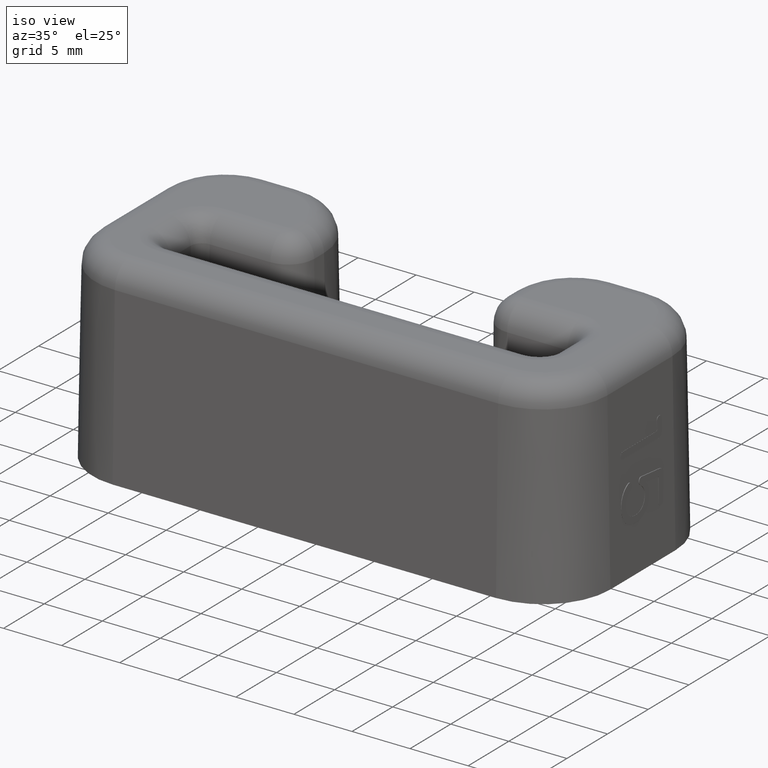
[diagram: clean part render]
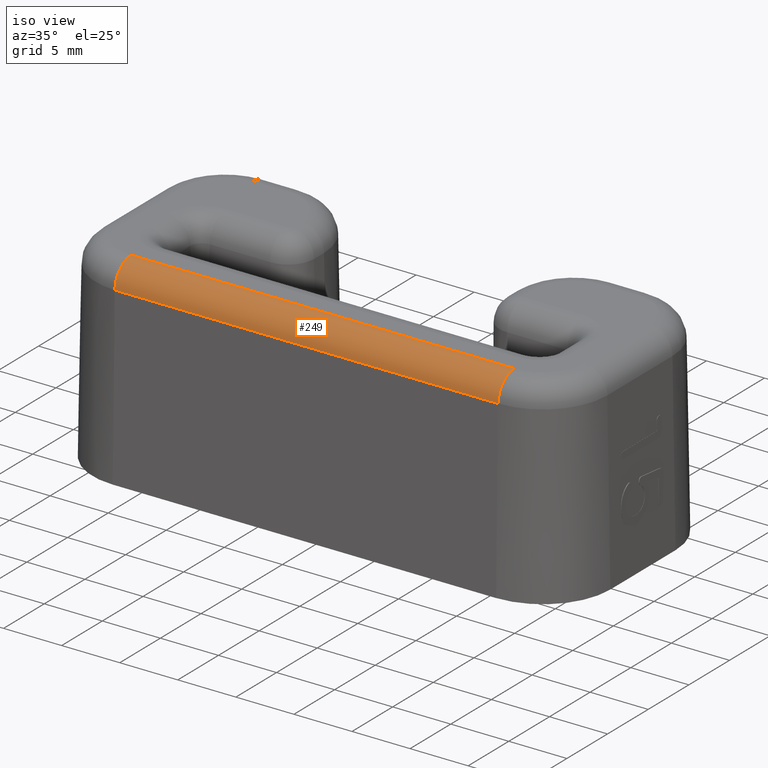
[diagram: same view with one face highlighted and labeled with its STEP entity id]
A machine part, iso view. The second image highlights one B-rep face of the part: STEP entity #249.
In plain terms, the highlighted cylindrical surface (edge-blend (fillet) strip) has radius 2 mm, axis along (1, 0, -0).
Its self-contained STEP definition (entity closure, byte-faithful):
#249=ADVANCED_FACE('',(#545),#546,.T.);
#545=FACE_OUTER_BOUND('',#967,.T.);
#546=CYLINDRICAL_SURFACE('',#968,2.0);
#967=EDGE_LOOP('',(#2144,#2145,#2146,#2147));
#968=AXIS2_PLACEMENT_3D('',#2148,#2149,#2150);
#2144=ORIENTED_EDGE('',*,*,#3116,.T.);
#2145=ORIENTED_EDGE('',*,*,#3117,.F.);
#2146=ORIENTED_EDGE('',*,*,#3111,.F.);
#2147=ORIENTED_EDGE('',*,*,#3105,.F.);
#2148=CARTESIAN_POINT('',(-16.5,-0.0346054737686194,15.0));
#2149=DIRECTION('',(1.0,0.0,-0.0));
#2150=DIRECTION('',(0.0,0.0,1.0));
#3105=EDGE_CURVE('',#3731,#3723,#3733,.F.);
#3111=EDGE_CURVE('',#3723,#3742,#3743,.T.);
#3116=EDGE_CURVE('',#3731,#3750,#3751,.T.);
#3117=EDGE_CURVE('',#3742,#3750,#3752,.F.);
#3723=VERTEX_POINT('',#5235);
#3731=VERTEX_POINT('',#5245);
#3733=LINE('',#5248,#5249);
#3742=VERTEX_POINT('',#5261);
#3743=CIRCLE('',#5262,2.0);
#3750=VERTEX_POINT('',#5269);
#3751=CIRCLE('',#5270,2.0);
#3752=LINE('',#5271,#5272);
#5235=CARTESIAN_POINT('',(-16.5,-2.03430086408135,15.0349048128745));
#5245=CARTESIAN_POINT('',(16.5,-2.03430086408141,15.0349048128745));
#5248=CARTESIAN_POINT('',(-16.5,-2.03430086408141,15.0349048128745));
#5249=VECTOR('',#5890,1000.0);
#5261=CARTESIAN_POINT('',(-16.5,-0.0346054737685605,17.0));
#5262=AXIS2_PLACEMENT_3D('',#5900,#5901,#5902);
#5269=CARTESIAN_POINT('',(16.5,-0.0346054737686194,17.0));
#5270=AXIS2_PLACEMENT_3D('',#5915,#5916,#5917);
#5271=CARTESIAN_POINT('',(-16.5,-0.0346054737686194,17.0));
#5272=VECTOR('',#5918,1000.0);
#5890=DIRECTION('',(1.0,0.0,0.0));
#5900=CARTESIAN_POINT('',(-16.5,-0.0346054737686199,15.0));
#5901=DIRECTION('',(-1.0,0.0,0.0));
#5902=DIRECTION('',(0.0,0.0,1.0));
#5915=CARTESIAN_POINT('',(16.5,-0.0346054737686489,15.0));
#5916=DIRECTION('',(-1.0,0.0,0.0));
#5917=DIRECTION('',(0.0,0.0,1.0));
#5918=DIRECTION('',(-1.0,0.0,0.0));